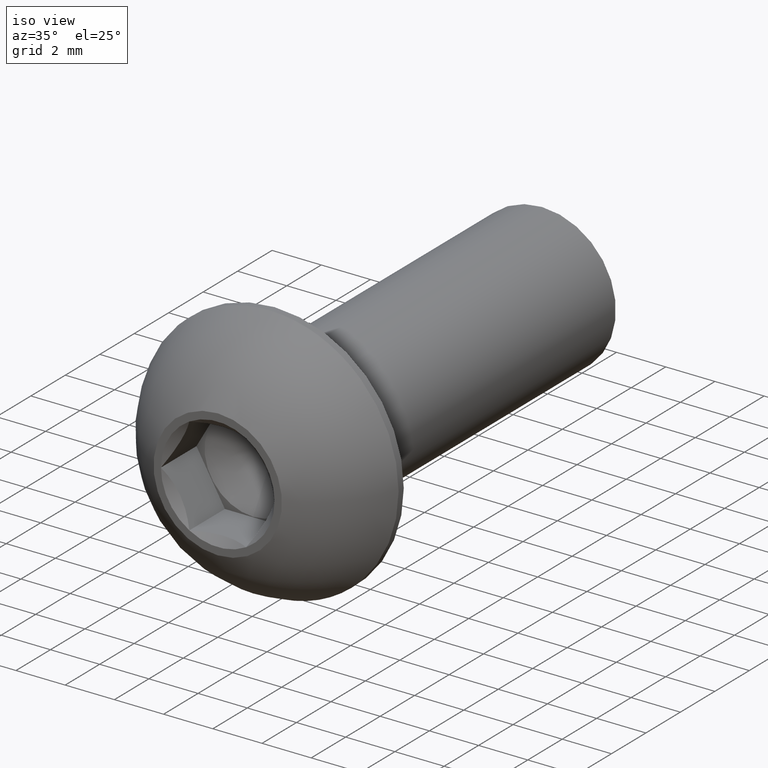
[diagram: clean part render]
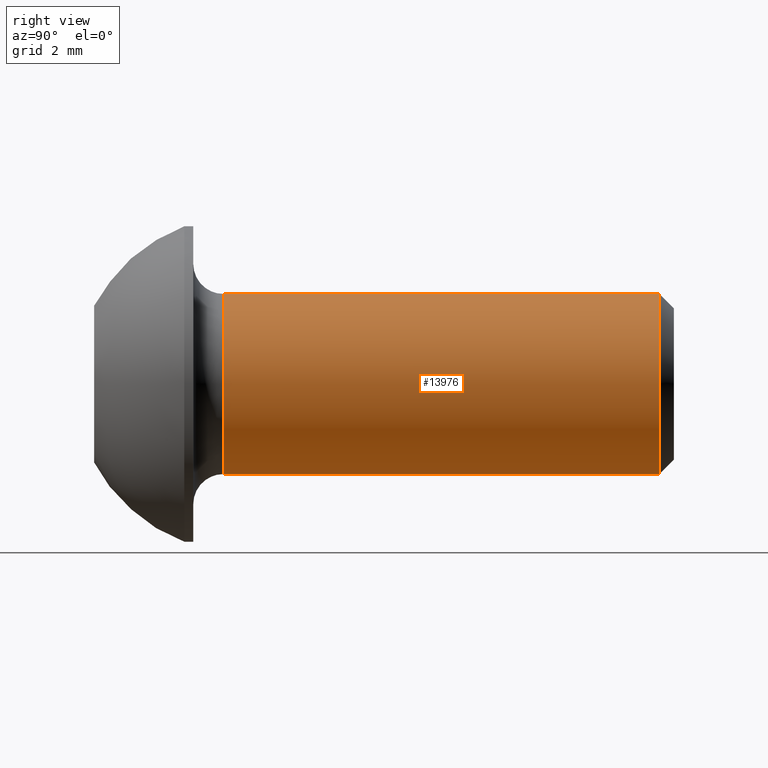
[diagram: tour spotlight — one face highlighted and labeled with its STEP entity id]
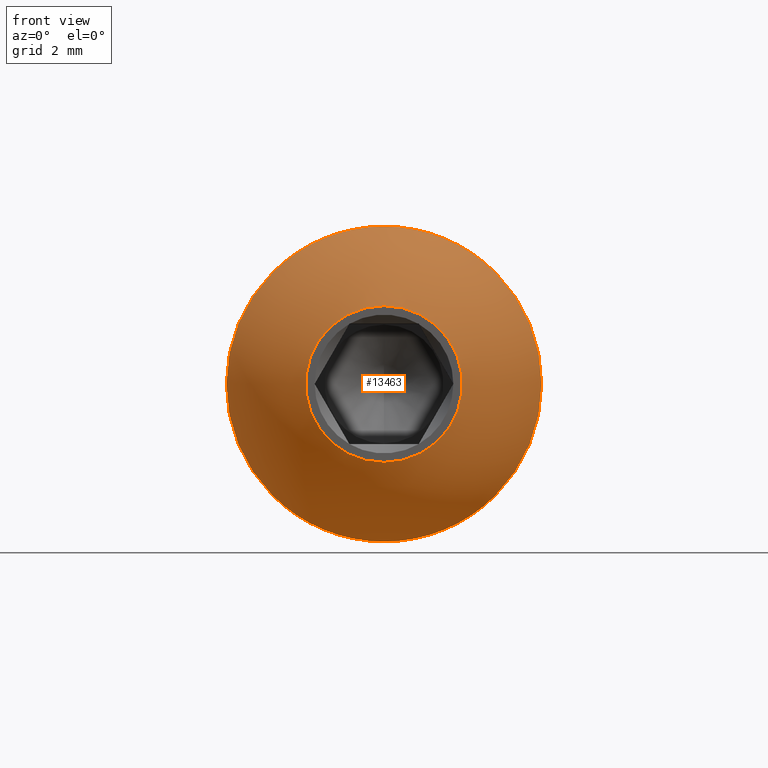
[diagram: tour spotlight — one face highlighted and labeled with its STEP entity id]
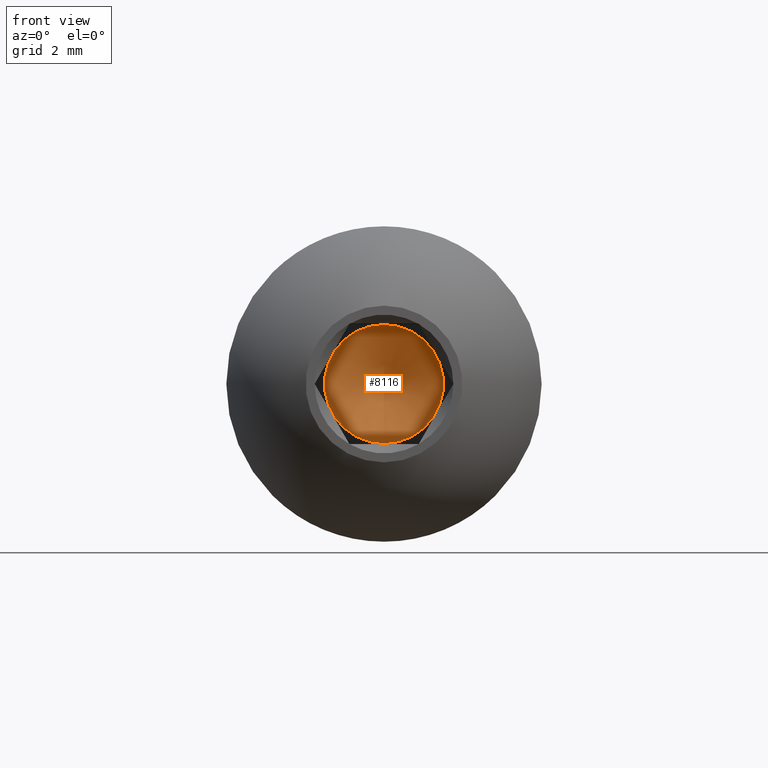
[diagram: tour spotlight — one face highlighted and labeled with its STEP entity id]
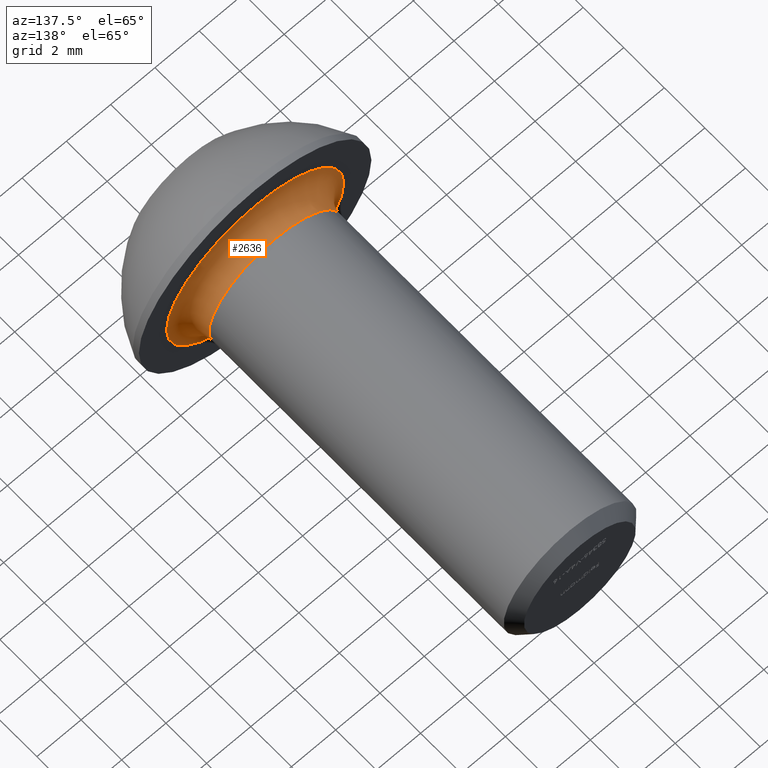
[diagram: tour spotlight — one face highlighted and labeled with its STEP entity id]
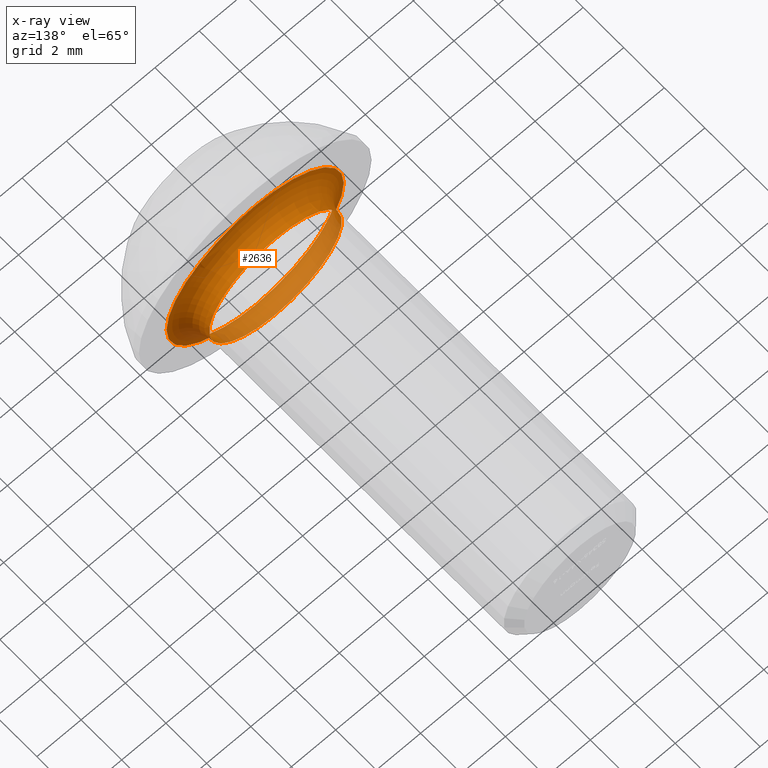
[diagram: x-ray of the same camera — body ghosted, this tour face saturated]
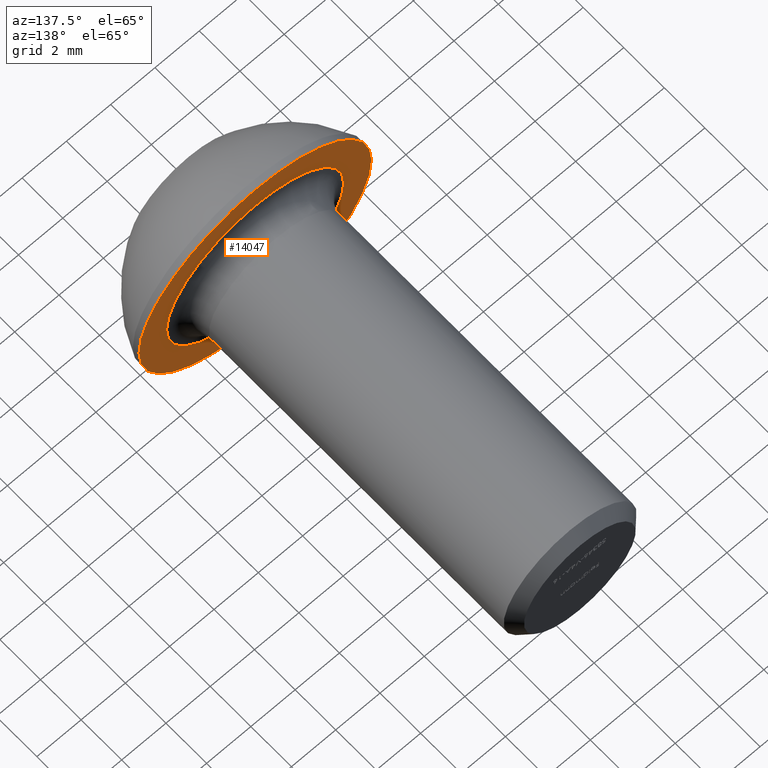
[diagram: tour spotlight — one face highlighted and labeled with its STEP entity id]
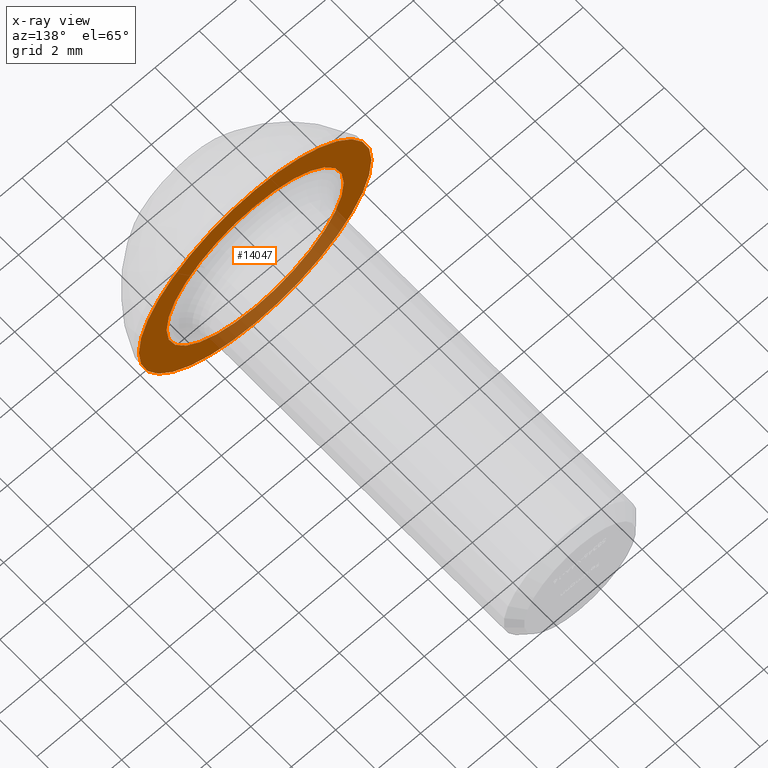
[diagram: x-ray of the same camera — body ghosted, this tour face saturated]
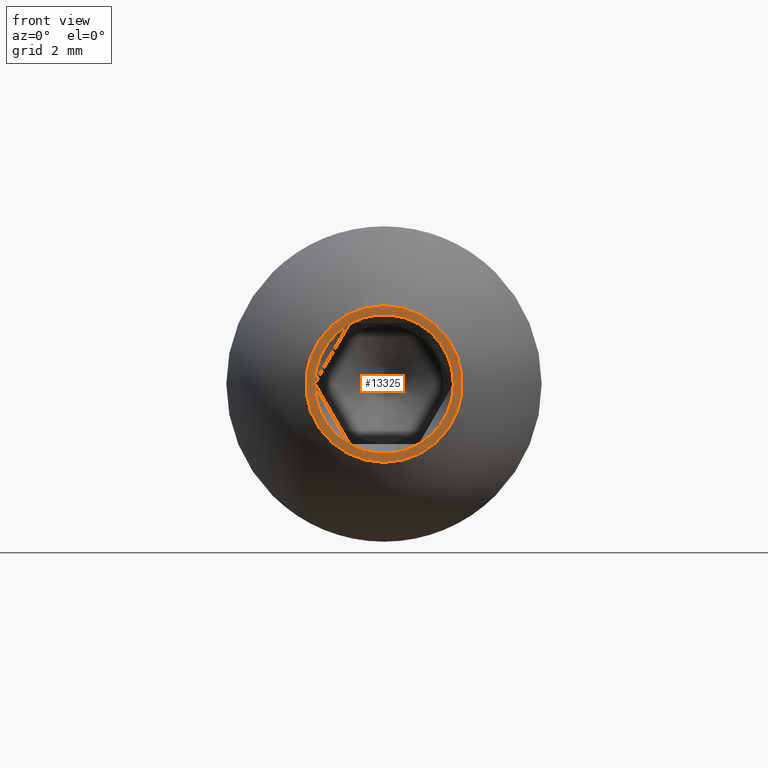
[diagram: tour spotlight — one face highlighted and labeled with its STEP entity id]
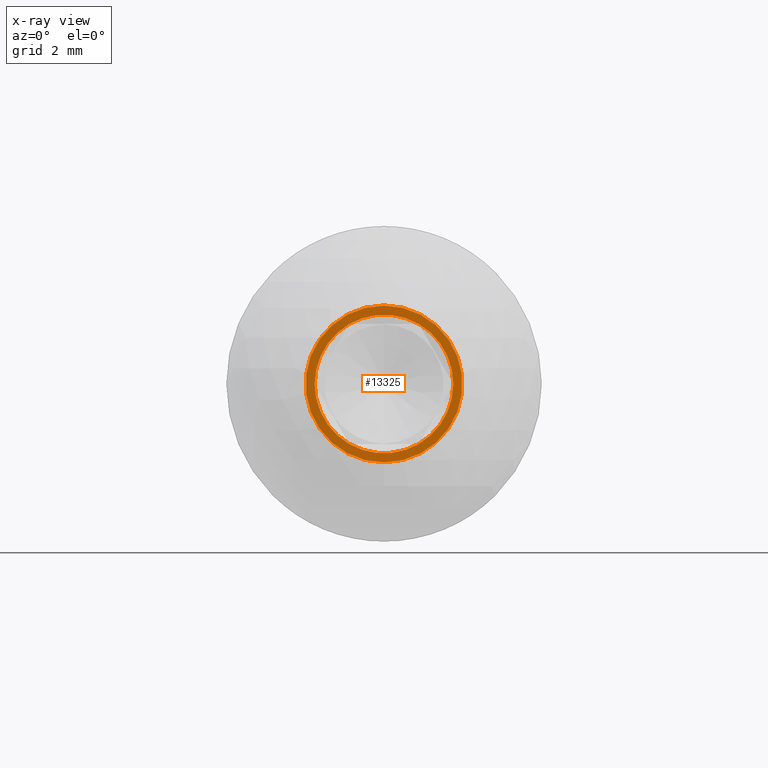
[diagram: x-ray of the same camera — body ghosted, this tour face saturated]
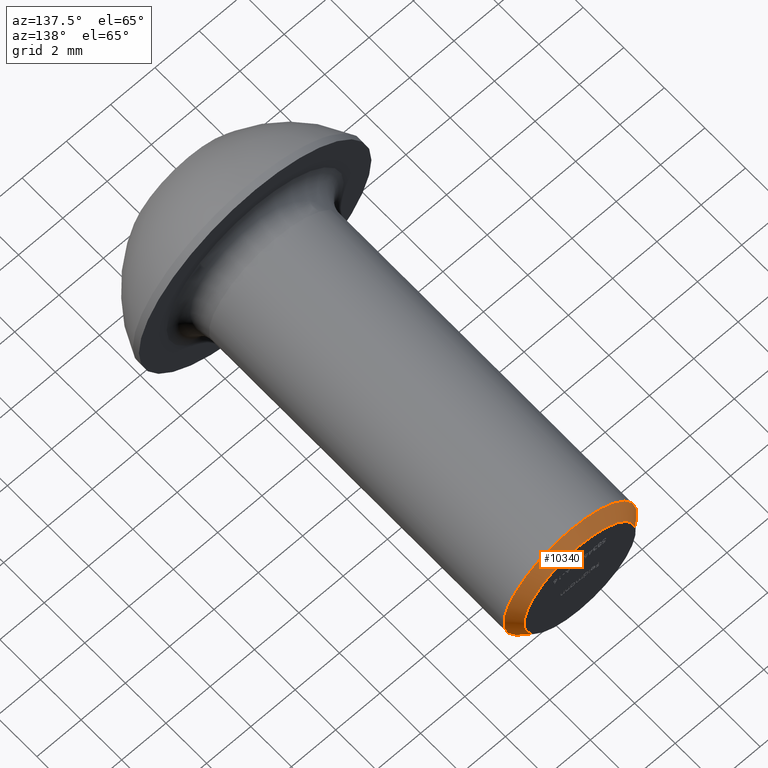
[diagram: tour spotlight — one face highlighted and labeled with its STEP entity id]
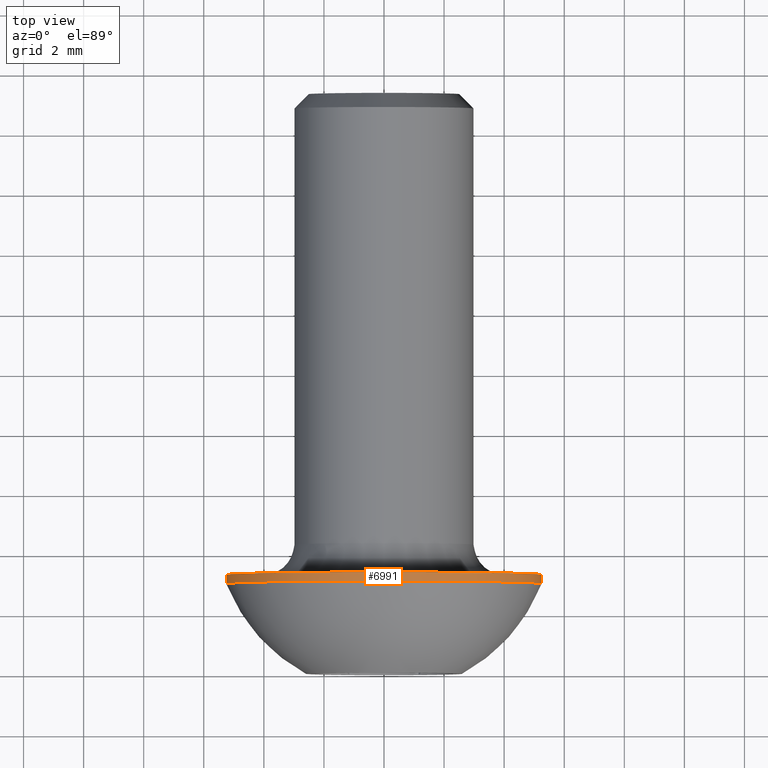
[diagram: tour spotlight — one face highlighted and labeled with its STEP entity id]
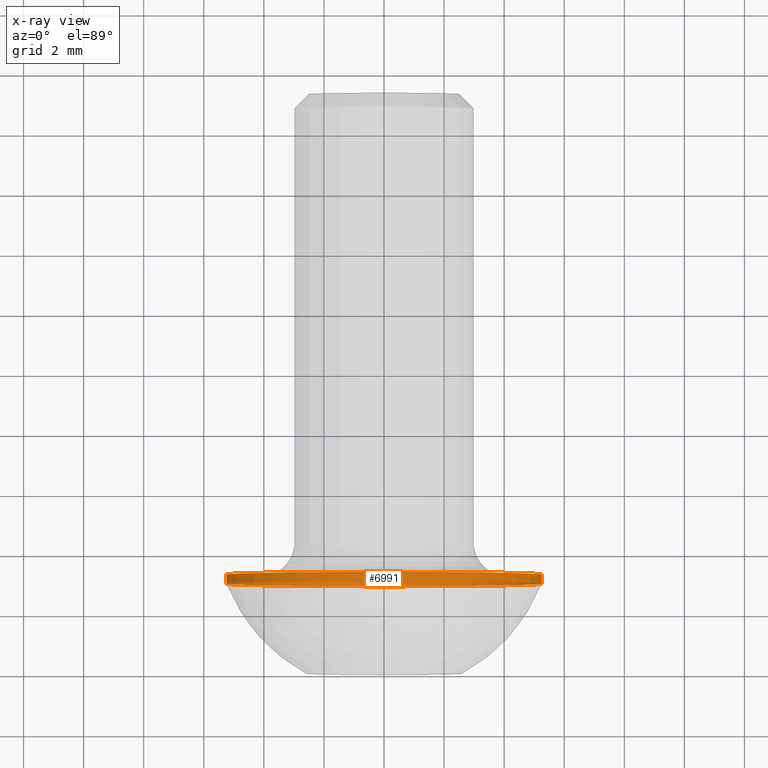
[diagram: x-ray of the same camera — body ghosted, this tour face saturated]
A machine part: a face-by-face anatomy tour. The part has 284 B-rep faces; the first image is the clean iso view, then the 8 largest visible faces are spotlighted one at a time (largest first), each with its STEP entity span.

Face 1 — right view, entity #13976. In plain terms, the highlighted cylindrical surface (bore or boss wall) has radius 3 mm, axis along (-0, -1, -0).
Definition (entity closure, byte-faithful):
#1062 = VERTEX_POINT ( 'NONE', #4914 ) ;
#1251 = CARTESIAN_POINT ( 'NONE',  ( 0.0000000000000000000, 4.299999999999999800, 0.0000000000000000000 ) ) ;
#1510 = EDGE_LOOP ( 'NONE', ( #7083 ) ) ;
#3542 = AXIS2_PLACEMENT_3D ( 'NONE', #8443, #12845, #11848 ) ;
#4266 = CARTESIAN_POINT ( 'NONE',  ( 0.0000000000000000000, 0.0000000000000000000, 0.0000000000000000000 ) ) ;
#4881 = FACE_OUTER_BOUND ( 'NONE', #11014, .T. ) ;
#4914 = CARTESIAN_POINT ( 'NONE',  ( 0.0000000000000000000, 18.82269999999999800, -2.999999999999995600 ) ) ;
#5054 = VERTEX_POINT ( 'NONE', #5830 ) ;
#5402 = CIRCLE ( 'NONE', #6385, 2.999999999999997300 ) ;
#5830 = CARTESIAN_POINT ( 'NONE',  ( 0.0000000000000000000, 4.299999999999999800, -2.999999999999997300 ) ) ;
#6370 = DIRECTION ( 'NONE',  ( 0.0000000000000000000, 0.0000000000000000000, -1.000000000000000000 ) ) ;
#6385 = AXIS2_PLACEMENT_3D ( 'NONE', #1251, #8945, #10043 ) ;
#6498 = ORIENTED_EDGE ( 'NONE', *, *, #13571, .T. ) ;
#7083 = ORIENTED_EDGE ( 'NONE', *, *, #13759, .T. ) ;
#7489 = AXIS2_PLACEMENT_3D ( 'NONE', #4266, #10622, #6370 ) ;
#8443 = CARTESIAN_POINT ( 'NONE',  ( 0.0000000000000000000, 18.82269999999999800, 0.0000000000000000000 ) ) ;
#8945 = DIRECTION ( 'NONE',  ( 0.0000000000000000000, 1.000000000000000000, 0.0000000000000000000 ) ) ;
#10043 = DIRECTION ( 'NONE',  ( 0.0000000000000000000, 0.0000000000000000000, -1.000000000000000000 ) ) ;
#10168 = CIRCLE ( 'NONE', #3542, 2.999999999999995600 ) ;
#10622 = DIRECTION ( 'NONE',  ( -0.0000000000000000000, -1.000000000000000000, -0.0000000000000000000 ) ) ;
#11014 = EDGE_LOOP ( 'NONE', ( #6498 ) ) ;
#11848 = DIRECTION ( 'NONE',  ( 0.0000000000000000000, 0.0000000000000000000, -1.000000000000000000 ) ) ;
#12845 = DIRECTION ( 'NONE',  ( -0.0000000000000000000, -1.000000000000000000, -0.0000000000000000000 ) ) ;
#13571 = EDGE_CURVE ( 'NONE', #1062, #1062, #10168, .T. ) ;
#13629 = CYLINDRICAL_SURFACE ( 'NONE', #7489, 2.999999999999997300 ) ;
#13759 = EDGE_CURVE ( 'NONE', #5054, #5054, #5402, .T. ) ;
#13976 = ADVANCED_FACE ( 'NONE', ( #14147, #4881 ), #13629, .T. ) ;
#14147 = FACE_OUTER_BOUND ( 'NONE', #1510, .T. ) ;

Face 2 — front view, entity #13463. In plain terms, the highlighted spherical surface has radius 5.6036 mm.
Definition (entity closure, byte-faithful):
#898 = SPHERICAL_SURFACE ( 'NONE', #5297, 5.603558824327607500 ) ;
#1649 = DIRECTION ( 'NONE',  ( 0.0000000000000000000, 0.0000000000000000000, 1.000000000000000000 ) ) ;
#1720 = DIRECTION ( 'NONE',  ( 0.0000000000000000000, 0.0000000000000000000, -1.000000000000000000 ) ) ;
#1906 = DIRECTION ( 'NONE',  ( -0.0000000000000000000, -1.000000000000000000, -0.0000000000000000000 ) ) ;
#2635 = CARTESIAN_POINT ( 'NONE',  ( 0.0000000000000000000, 3.000000000000000000, -5.249999999999999100 ) ) ;
#3590 = ORIENTED_EDGE ( 'NONE', *, *, #13072, .T. ) ;
#3717 = VERTEX_POINT ( 'NONE', #2635 ) ;
#3841 = DIRECTION ( 'NONE',  ( 1.000000000000000000, 0.0000000000000000000, 0.0000000000000000000 ) ) ;
#4013 = EDGE_CURVE ( 'NONE', #12084, #12084, #13783, .T. ) ;
#4555 = EDGE_LOOP ( 'NONE', ( #3590 ) ) ;
#5074 = CIRCLE ( 'NONE', #9838, 5.249999999999999100 ) ;
#5297 = AXIS2_PLACEMENT_3D ( 'NONE', #10494, #1649, #3841 ) ;
#6537 = ORIENTED_EDGE ( 'NONE', *, *, #4013, .F. ) ;
#7759 = EDGE_LOOP ( 'NONE', ( #6537 ) ) ;
#9547 = DIRECTION ( 'NONE',  ( -0.0000000000000000000, -1.000000000000000000, -0.0000000000000000000 ) ) ;
#9586 = DIRECTION ( 'NONE',  ( 0.0000000000000000000, 0.0000000000000000000, -1.000000000000000000 ) ) ;
#9838 = AXIS2_PLACEMENT_3D ( 'NONE', #10457, #9547, #1720 ) ;
#10457 = CARTESIAN_POINT ( 'NONE',  ( 0.0000000000000000000, 3.000000000000000000, 0.0000000000000000000 ) ) ;
#10494 = CARTESIAN_POINT ( 'NONE',  ( 0.0000000000000000000, 4.958921003435260200, 0.0000000000000000000 ) ) ;
#11425 = CARTESIAN_POINT ( 'NONE',  ( 0.0000000000000000000, -8.673617379884035500E-016, -2.609401076758501000 ) ) ;
#12084 = VERTEX_POINT ( 'NONE', #11425 ) ;
#12226 = AXIS2_PLACEMENT_3D ( 'NONE', #12941, #1906, #9586 ) ;
#12941 = CARTESIAN_POINT ( 'NONE',  ( 0.0000000000000000000, -8.673617379884035500E-016, 0.0000000000000000000 ) ) ;
#13072 = EDGE_CURVE ( 'NONE', #3717, #3717, #5074, .T. ) ;
#13125 = FACE_OUTER_BOUND ( 'NONE', #7759, .T. ) ;
#13302 = FACE_OUTER_BOUND ( 'NONE', #4555, .T. ) ;
#13463 = ADVANCED_FACE ( 'NONE', ( #13302, #13125 ), #898, .T. ) ;
#13783 = CIRCLE ( 'NONE', #12226, 2.609401076758501000 ) ;

Face 3 — front view, entity #8116. In plain terms, the highlighted conical surface has half-angle 59 deg.
Definition (entity closure, byte-faithful):
#461 = FACE_OUTER_BOUND ( 'NONE', #1400, .T. ) ;
#1400 = EDGE_LOOP ( 'NONE', ( #11714 ) ) ;
#1598 = EDGE_CURVE ( 'NONE', #6084, #6084, #11752, .T. ) ;
#1631 = DIRECTION ( 'NONE',  ( -0.0000000000000000000, -1.000000000000000000, -0.0000000000000000000 ) ) ;
#2209 = CONICAL_SURFACE ( 'NONE', #5358, 1.979999999999999500, 1.029744258676657400 ) ;
#5358 = AXIS2_PLACEMENT_3D ( 'NONE', #11341, #1631, #11444 ) ;
#5773 = AXIS2_PLACEMENT_3D ( 'NONE', #12982, #12940, #6349 ) ;
#6084 = VERTEX_POINT ( 'NONE', #12607 ) ;
#6349 = DIRECTION ( 'NONE',  ( 0.0000000000000000000, 0.0000000000000000000, -1.000000000000000000 ) ) ;
#8116 = ADVANCED_FACE ( 'NONE', ( #461 ), #2209, .F. ) ;
#11341 = CARTESIAN_POINT ( 'NONE',  ( 0.0000000000000000000, 2.062499999999999100, 0.0000000000000000000 ) ) ;
#11444 = DIRECTION ( 'NONE',  ( 0.0000000000000000000, 0.0000000000000000000, -1.000000000000000000 ) ) ;
#11714 = ORIENTED_EDGE ( 'NONE', *, *, #1598, .F. ) ;
#11752 = CIRCLE ( 'NONE', #5773, 1.980000000000000000 ) ;
#12607 = CARTESIAN_POINT ( 'NONE',  ( 0.0000000000000000000, 2.062499999999999600, -1.980000000000000000 ) ) ;
#12940 = DIRECTION ( 'NONE',  ( -0.0000000000000000000, 1.000000000000000000, -0.0000000000000000000 ) ) ;
#12982 = CARTESIAN_POINT ( 'NONE',  ( 0.0000000000000000000, 2.062499999999999600, 0.0000000000000000000 ) ) ;

Face 4 — auxiliary view, entity #2636. An x-ray twin of the same camera follows (body ghosted, this face saturated) — the face is partly hidden behind the body. In plain terms, the highlighted toroidal blend (fillet) surface has major radius 4 mm and minor (blend) radius 1 mm.
Definition (entity closure, byte-faithful):
#522 = ORIENTED_EDGE ( 'NONE', *, *, #9339, .F. ) ;
#1251 = CARTESIAN_POINT ( 'NONE',  ( 0.0000000000000000000, 4.299999999999999800, 0.0000000000000000000 ) ) ;
#1289 = CARTESIAN_POINT ( 'NONE',  ( 0.0000000000000000000, 3.299999999999999800, 0.0000000000000000000 ) ) ;
#2342 = ORIENTED_EDGE ( 'NONE', *, *, #13759, .F. ) ;
#2379 = AXIS2_PLACEMENT_3D ( 'NONE', #1289, #6937, #10176 ) ;
#2636 = ADVANCED_FACE ( 'NONE', ( #2975, #13289 ), #4195, .F. ) ;
#2638 = DIRECTION ( 'NONE',  ( -0.0000000000000000000, -1.000000000000000000, -0.0000000000000000000 ) ) ;
#2975 = FACE_OUTER_BOUND ( 'NONE', #7581, .T. ) ;
#4195 = TOROIDAL_SURFACE ( 'NONE', #13508, 3.999999999999997300, 1.000000000000000000 ) ;
#4722 = CARTESIAN_POINT ( 'NONE',  ( 0.0000000000000000000, 3.299999999999999800, -3.999999999999997300 ) ) ;
#5054 = VERTEX_POINT ( 'NONE', #5830 ) ;
#5239 = CIRCLE ( 'NONE', #2379, 3.999999999999997300 ) ;
#5402 = CIRCLE ( 'NONE', #6385, 2.999999999999997300 ) ;
#5830 = CARTESIAN_POINT ( 'NONE',  ( 0.0000000000000000000, 4.299999999999999800, -2.999999999999997300 ) ) ;
#6385 = AXIS2_PLACEMENT_3D ( 'NONE', #1251, #8945, #10043 ) ;
#6937 = DIRECTION ( 'NONE',  ( -0.0000000000000000000, -1.000000000000000000, -0.0000000000000000000 ) ) ;
#7581 = EDGE_LOOP ( 'NONE', ( #2342 ) ) ;
#8945 = DIRECTION ( 'NONE',  ( 0.0000000000000000000, 1.000000000000000000, 0.0000000000000000000 ) ) ;
#9339 = EDGE_CURVE ( 'NONE', #9534, #9534, #5239, .T. ) ;
#9534 = VERTEX_POINT ( 'NONE', #4722 ) ;
#10043 = DIRECTION ( 'NONE',  ( 0.0000000000000000000, 0.0000000000000000000, -1.000000000000000000 ) ) ;
#10176 = DIRECTION ( 'NONE',  ( 0.0000000000000000000, 0.0000000000000000000, -1.000000000000000000 ) ) ;
#10312 = DIRECTION ( 'NONE',  ( 0.0000000000000000000, 0.0000000000000000000, -1.000000000000000000 ) ) ;
#12462 = EDGE_LOOP ( 'NONE', ( #522 ) ) ;
#12610 = CARTESIAN_POINT ( 'NONE',  ( 0.0000000000000000000, 4.299999999999999800, 0.0000000000000000000 ) ) ;
#13289 = FACE_OUTER_BOUND ( 'NONE', #12462, .T. ) ;
#13508 = AXIS2_PLACEMENT_3D ( 'NONE', #12610, #2638, #10312 ) ;
#13759 = EDGE_CURVE ( 'NONE', #5054, #5054, #5402, .T. ) ;

Face 5 — auxiliary view, entity #14047. An x-ray twin of the same camera follows (body ghosted, this face saturated) — the face is partly hidden behind the body. In plain terms, the highlighted planar face has unit normal (0, -1, -0).
Definition (entity closure, byte-faithful):
#7 = EDGE_LOOP ( 'NONE', ( #2085 ) ) ;
#501 = CARTESIAN_POINT ( 'NONE',  ( 0.0000000000000000000, 3.299999999999999800, -5.249999999999999100 ) ) ;
#886 = CIRCLE ( 'NONE', #10346, 5.249999999999999100 ) ;
#1289 = CARTESIAN_POINT ( 'NONE',  ( 0.0000000000000000000, 3.299999999999999800, 0.0000000000000000000 ) ) ;
#1927 = DIRECTION ( 'NONE',  ( 0.0000000000000000000, -1.000000000000000000, -0.0000000000000000000 ) ) ;
#2085 = ORIENTED_EDGE ( 'NONE', *, *, #9339, .T. ) ;
#2379 = AXIS2_PLACEMENT_3D ( 'NONE', #1289, #6937, #10176 ) ;
#2701 = EDGE_CURVE ( 'NONE', #8469, #8469, #886, .T. ) ;
#4219 = CARTESIAN_POINT ( 'NONE',  ( 2.999999999999999100, 3.299999999999999800, 0.0000000000000000000 ) ) ;
#4722 = CARTESIAN_POINT ( 'NONE',  ( 0.0000000000000000000, 3.299999999999999800, -3.999999999999997300 ) ) ;
#5239 = CIRCLE ( 'NONE', #2379, 3.999999999999997300 ) ;
#5784 = EDGE_LOOP ( 'NONE', ( #12988 ) ) ;
#6937 = DIRECTION ( 'NONE',  ( -0.0000000000000000000, -1.000000000000000000, -0.0000000000000000000 ) ) ;
#7600 = DIRECTION ( 'NONE',  ( -0.0000000000000000000, -1.000000000000000000, -0.0000000000000000000 ) ) ;
#8216 = AXIS2_PLACEMENT_3D ( 'NONE', #4219, #1927, #13006 ) ;
#8469 = VERTEX_POINT ( 'NONE', #501 ) ;
#9339 = EDGE_CURVE ( 'NONE', #9534, #9534, #5239, .T. ) ;
#9534 = VERTEX_POINT ( 'NONE', #4722 ) ;
#10176 = DIRECTION ( 'NONE',  ( 0.0000000000000000000, 0.0000000000000000000, -1.000000000000000000 ) ) ;
#10339 = FACE_OUTER_BOUND ( 'NONE', #5784, .T. ) ;
#10346 = AXIS2_PLACEMENT_3D ( 'NONE', #13088, #7600, #12858 ) ;
#10806 = PLANE ( 'NONE',  #8216 ) ;
#11373 = FACE_BOUND ( 'NONE', #7, .T. ) ;
#12858 = DIRECTION ( 'NONE',  ( 0.0000000000000000000, 0.0000000000000000000, -1.000000000000000000 ) ) ;
#12988 = ORIENTED_EDGE ( 'NONE', *, *, #2701, .F. ) ;
#13006 = DIRECTION ( 'NONE',  ( 0.0000000000000000000, 0.0000000000000000000, -1.000000000000000000 ) ) ;
#13088 = CARTESIAN_POINT ( 'NONE',  ( 0.0000000000000000000, 3.299999999999999800, 0.0000000000000000000 ) ) ;
#14047 = ADVANCED_FACE ( 'NONE', ( #11373, #10339 ), #10806, .F. ) ;

Face 6 — front view, entity #13325. An x-ray twin of the same camera follows (body ghosted, this face saturated) — the face is partly hidden behind the body. In plain terms, the highlighted planar face has unit normal (0, 1, 0).
Definition (entity closure, byte-faithful):
#240 = PLANE ( 'NONE',  #7390 ) ;
#340 = CARTESIAN_POINT ( 'NONE',  ( 2.609401076758502700, -4.336808689942017700E-016, 0.0000000000000000000 ) ) ;
#545 = CIRCLE ( 'NONE', #11169, 2.309401076758502900 ) ;
#663 = ORIENTED_EDGE ( 'NONE', *, *, #664, .F. ) ;
#664 = EDGE_CURVE ( 'NONE', #3145, #10253, #545, .T. ) ;
#861 = CIRCLE ( 'NONE', #4863, 2.309401076758502900 ) ;
#1169 = ORIENTED_EDGE ( 'NONE', *, *, #4013, .T. ) ;
#1345 = EDGE_LOOP ( 'NONE', ( #1169 ) ) ;
#1527 = CARTESIAN_POINT ( 'NONE',  ( 2.309401076758477200, 0.0000000000000000000, -4.329725882211680000E-016 ) ) ;
#1906 = DIRECTION ( 'NONE',  ( -0.0000000000000000000, -1.000000000000000000, -0.0000000000000000000 ) ) ;
#2375 = CIRCLE ( 'NONE', #13259, 2.309401076758502900 ) ;
#2413 = ORIENTED_EDGE ( 'NONE', *, *, #10199, .F. ) ;
#2514 = DIRECTION ( 'NONE',  ( -0.0000000000000000000, -1.000000000000000000, -0.0000000000000000000 ) ) ;
#2661 = CARTESIAN_POINT ( 'NONE',  ( -1.154700538379267900, 0.0000000000000000000, -2.000000000000000900 ) ) ;
#2925 = CARTESIAN_POINT ( 'NONE',  ( 1.154700538379232100, 0.0000000000000000000, 1.999999999999999600 ) ) ;
#3145 = VERTEX_POINT ( 'NONE', #9224 ) ;
#3227 = CARTESIAN_POINT ( 'NONE',  ( 0.0000000000000000000, 0.0000000000000000000, 0.0000000000000000000 ) ) ;
#3404 = EDGE_CURVE ( 'NONE', #10253, #6145, #13452, .T. ) ;
#3708 = DIRECTION ( 'NONE',  ( 0.0000000000000000000, 1.000000000000000000, 0.0000000000000000000 ) ) ;
#3830 = DIRECTION ( 'NONE',  ( 0.0000000000000000000, 0.0000000000000000000, -1.000000000000000000 ) ) ;
#3888 = CIRCLE ( 'NONE', #6280, 2.309401076758502900 ) ;
#3975 = CARTESIAN_POINT ( 'NONE',  ( 0.0000000000000000000, 0.0000000000000000000, 0.0000000000000000000 ) ) ;
#4013 = EDGE_CURVE ( 'NONE', #12084, #12084, #13783, .T. ) ;
#4321 = CARTESIAN_POINT ( 'NONE',  ( -1.154700538379267900, 0.0000000000000000000, 1.999999999999999600 ) ) ;
#4589 = EDGE_CURVE ( 'NONE', #6310, #12603, #861, .T. ) ;
#4863 = AXIS2_PLACEMENT_3D ( 'NONE', #13511, #6929, #6876 ) ;
#5228 = DIRECTION ( 'NONE',  ( 0.0000000000000000000, 0.0000000000000000000, -1.000000000000000000 ) ) ;
#5541 = DIRECTION ( 'NONE',  ( 0.0000000000000000000, 0.0000000000000000000, -1.000000000000000000 ) ) ;
#5616 = ORIENTED_EDGE ( 'NONE', *, *, #4589, .F. ) ;
#5685 = CARTESIAN_POINT ( 'NONE',  ( 1.154700538379223500, 0.0000000000000000000, -2.000000000000016000 ) ) ;
#6107 = AXIS2_PLACEMENT_3D ( 'NONE', #11601, #9700, #5228 ) ;
#6145 = VERTEX_POINT ( 'NONE', #5685 ) ;
#6280 = AXIS2_PLACEMENT_3D ( 'NONE', #13528, #2514, #3830 ) ;
#6310 = VERTEX_POINT ( 'NONE', #2925 ) ;
#6876 = DIRECTION ( 'NONE',  ( 0.0000000000000000000, 0.0000000000000000000, -1.000000000000000000 ) ) ;
#6929 = DIRECTION ( 'NONE',  ( -0.0000000000000000000, -1.000000000000000000, -0.0000000000000000000 ) ) ;
#6948 = DIRECTION ( 'NONE',  ( -0.0000000000000000000, -1.000000000000000000, -0.0000000000000000000 ) ) ;
#6992 = CARTESIAN_POINT ( 'NONE',  ( 0.0000000000000000000, 0.0000000000000000000, 0.0000000000000000000 ) ) ;
#7390 = AXIS2_PLACEMENT_3D ( 'NONE', #340, #3708, #8046 ) ;
#8046 = DIRECTION ( 'NONE',  ( 0.0000000000000000000, -0.0000000000000000000, 1.000000000000000000 ) ) ;
#8212 = EDGE_CURVE ( 'NONE', #6145, #8503, #2375, .T. ) ;
#8231 = EDGE_LOOP ( 'NONE', ( #8763, #12041, #663, #8380, #5616, #2413 ) ) ;
#8380 = ORIENTED_EDGE ( 'NONE', *, *, #13886, .F. ) ;
#8503 = VERTEX_POINT ( 'NONE', #1527 ) ;
#8763 = ORIENTED_EDGE ( 'NONE', *, *, #8212, .F. ) ;
#9224 = CARTESIAN_POINT ( 'NONE',  ( -2.309401076758476300, 0.0000000000000000000, 1.326675390987758900E-016 ) ) ;
#9586 = DIRECTION ( 'NONE',  ( 0.0000000000000000000, 0.0000000000000000000, -1.000000000000000000 ) ) ;
#9700 = DIRECTION ( 'NONE',  ( -0.0000000000000000000, -1.000000000000000000, -0.0000000000000000000 ) ) ;
#9878 = DIRECTION ( 'NONE',  ( -0.0000000000000000000, -1.000000000000000000, -0.0000000000000000000 ) ) ;
#10199 = EDGE_CURVE ( 'NONE', #8503, #6310, #3888, .T. ) ;
#10253 = VERTEX_POINT ( 'NONE', #2661 ) ;
#10575 = DIRECTION ( 'NONE',  ( 0.0000000000000000000, 0.0000000000000000000, -1.000000000000000000 ) ) ;
#10879 = FACE_BOUND ( 'NONE', #8231, .T. ) ;
#11169 = AXIS2_PLACEMENT_3D ( 'NONE', #6992, #6948, #11397 ) ;
#11397 = DIRECTION ( 'NONE',  ( 0.0000000000000000000, 0.0000000000000000000, -1.000000000000000000 ) ) ;
#11425 = CARTESIAN_POINT ( 'NONE',  ( 0.0000000000000000000, -8.673617379884035500E-016, -2.609401076758501000 ) ) ;
#11601 = CARTESIAN_POINT ( 'NONE',  ( 0.0000000000000000000, 0.0000000000000000000, 0.0000000000000000000 ) ) ;
#12024 = AXIS2_PLACEMENT_3D ( 'NONE', #3227, #9878, #5541 ) ;
#12041 = ORIENTED_EDGE ( 'NONE', *, *, #3404, .F. ) ;
#12084 = VERTEX_POINT ( 'NONE', #11425 ) ;
#12226 = AXIS2_PLACEMENT_3D ( 'NONE', #12941, #1906, #9586 ) ;
#12280 = FACE_OUTER_BOUND ( 'NONE', #1345, .T. ) ;
#12603 = VERTEX_POINT ( 'NONE', #4321 ) ;
#12941 = CARTESIAN_POINT ( 'NONE',  ( 0.0000000000000000000, -8.673617379884035500E-016, 0.0000000000000000000 ) ) ;
#13259 = AXIS2_PLACEMENT_3D ( 'NONE', #3975, #13811, #10575 ) ;
#13325 = ADVANCED_FACE ( 'NONE', ( #10879, #12280 ), #240, .F. ) ;
#13452 = CIRCLE ( 'NONE', #12024, 2.309401076758502900 ) ;
#13511 = CARTESIAN_POINT ( 'NONE',  ( 0.0000000000000000000, 0.0000000000000000000, 0.0000000000000000000 ) ) ;
#13528 = CARTESIAN_POINT ( 'NONE',  ( 0.0000000000000000000, 0.0000000000000000000, 0.0000000000000000000 ) ) ;
#13783 = CIRCLE ( 'NONE', #12226, 2.609401076758501000 ) ;
#13810 = CIRCLE ( 'NONE', #6107, 2.309401076758502900 ) ;
#13811 = DIRECTION ( 'NONE',  ( -0.0000000000000000000, -1.000000000000000000, -0.0000000000000000000 ) ) ;
#13886 = EDGE_CURVE ( 'NONE', #12603, #3145, #13810, .T. ) ;

Face 7 — auxiliary view, entity #10340. In plain terms, the highlighted conical surface has half-angle 45 deg.
Definition (entity closure, byte-faithful):
#483 = EDGE_CURVE ( 'NONE', #1772, #1772, #7286, .T. ) ;
#939 = FACE_BOUND ( 'NONE', #2409, .T. ) ;
#1062 = VERTEX_POINT ( 'NONE', #4914 ) ;
#1429 = CARTESIAN_POINT ( 'NONE',  ( 0.0000000000000000000, 19.29999999999999700, -2.522700000000002600 ) ) ;
#1636 = DIRECTION ( 'NONE',  ( -0.0000000000000000000, -1.000000000000000000, -0.0000000000000000000 ) ) ;
#1772 = VERTEX_POINT ( 'NONE', #1429 ) ;
#2143 = FACE_OUTER_BOUND ( 'NONE', #10906, .T. ) ;
#2409 = EDGE_LOOP ( 'NONE', ( #8703 ) ) ;
#3542 = AXIS2_PLACEMENT_3D ( 'NONE', #8443, #12845, #11848 ) ;
#4812 = DIRECTION ( 'NONE',  ( -0.0000000000000000000, -1.000000000000000000, -0.0000000000000000000 ) ) ;
#4914 = CARTESIAN_POINT ( 'NONE',  ( 0.0000000000000000000, 18.82269999999999800, -2.999999999999995600 ) ) ;
#5139 = DIRECTION ( 'NONE',  ( 0.0000000000000000000, 0.0000000000000000000, -1.000000000000000000 ) ) ;
#6236 = CARTESIAN_POINT ( 'NONE',  ( 0.0000000000000000000, 19.29999999999999700, 0.0000000000000000000 ) ) ;
#7286 = CIRCLE ( 'NONE', #10433, 2.522700000000002600 ) ;
#8443 = CARTESIAN_POINT ( 'NONE',  ( 0.0000000000000000000, 18.82269999999999800, 0.0000000000000000000 ) ) ;
#8703 = ORIENTED_EDGE ( 'NONE', *, *, #483, .T. ) ;
#10168 = CIRCLE ( 'NONE', #3542, 2.999999999999995600 ) ;
#10340 = ADVANCED_FACE ( 'NONE', ( #2143, #939 ), #12843, .T. ) ;
#10433 = AXIS2_PLACEMENT_3D ( 'NONE', #11367, #4812, #13548 ) ;
#10906 = EDGE_LOOP ( 'NONE', ( #13576 ) ) ;
#11367 = CARTESIAN_POINT ( 'NONE',  ( 0.0000000000000000000, 19.29999999999999700, 0.0000000000000000000 ) ) ;
#11848 = DIRECTION ( 'NONE',  ( 0.0000000000000000000, 0.0000000000000000000, -1.000000000000000000 ) ) ;
#12156 = AXIS2_PLACEMENT_3D ( 'NONE', #6236, #1636, #5139 ) ;
#12843 = CONICAL_SURFACE ( 'NONE', #12156, 2.522700000000002600, 0.7853981633974410600 ) ;
#12845 = DIRECTION ( 'NONE',  ( -0.0000000000000000000, -1.000000000000000000, -0.0000000000000000000 ) ) ;
#13548 = DIRECTION ( 'NONE',  ( 0.0000000000000000000, 0.0000000000000000000, -1.000000000000000000 ) ) ;
#13571 = EDGE_CURVE ( 'NONE', #1062, #1062, #10168, .T. ) ;
#13576 = ORIENTED_EDGE ( 'NONE', *, *, #13571, .F. ) ;

Face 8 — top view, entity #6991. An x-ray twin of the same camera follows (body ghosted, this face saturated) — the face is partly hidden behind the body. In plain terms, the highlighted cylindrical surface (bore or boss wall) has radius 5.25 mm, axis along (-0, -1, -0).
Definition (entity closure, byte-faithful):
#501 = CARTESIAN_POINT ( 'NONE',  ( 0.0000000000000000000, 3.299999999999999800, -5.249999999999999100 ) ) ;
#886 = CIRCLE ( 'NONE', #10346, 5.249999999999999100 ) ;
#1720 = DIRECTION ( 'NONE',  ( 0.0000000000000000000, 0.0000000000000000000, -1.000000000000000000 ) ) ;
#2043 = FACE_OUTER_BOUND ( 'NONE', #10473, .T. ) ;
#2359 = ORIENTED_EDGE ( 'NONE', *, *, #13072, .F. ) ;
#2635 = CARTESIAN_POINT ( 'NONE',  ( 0.0000000000000000000, 3.000000000000000000, -5.249999999999999100 ) ) ;
#2701 = EDGE_CURVE ( 'NONE', #8469, #8469, #886, .T. ) ;
#3717 = VERTEX_POINT ( 'NONE', #2635 ) ;
#4223 = DIRECTION ( 'NONE',  ( -0.0000000000000000000, -1.000000000000000000, -0.0000000000000000000 ) ) ;
#5074 = CIRCLE ( 'NONE', #9838, 5.249999999999999100 ) ;
#5356 = FACE_OUTER_BOUND ( 'NONE', #9939, .T. ) ;
#6991 = ADVANCED_FACE ( 'NONE', ( #2043, #5356 ), #8406, .T. ) ;
#7600 = DIRECTION ( 'NONE',  ( -0.0000000000000000000, -1.000000000000000000, -0.0000000000000000000 ) ) ;
#7713 = AXIS2_PLACEMENT_3D ( 'NONE', #14181, #4223, #12015 ) ;
#8406 = CYLINDRICAL_SURFACE ( 'NONE', #7713, 5.249999999999999100 ) ;
#8469 = VERTEX_POINT ( 'NONE', #501 ) ;
#8596 = ORIENTED_EDGE ( 'NONE', *, *, #2701, .T. ) ;
#9547 = DIRECTION ( 'NONE',  ( -0.0000000000000000000, -1.000000000000000000, -0.0000000000000000000 ) ) ;
#9838 = AXIS2_PLACEMENT_3D ( 'NONE', #10457, #9547, #1720 ) ;
#9939 = EDGE_LOOP ( 'NONE', ( #8596 ) ) ;
#10346 = AXIS2_PLACEMENT_3D ( 'NONE', #13088, #7600, #12858 ) ;
#10457 = CARTESIAN_POINT ( 'NONE',  ( 0.0000000000000000000, 3.000000000000000000, 0.0000000000000000000 ) ) ;
#10473 = EDGE_LOOP ( 'NONE', ( #2359 ) ) ;
#12015 = DIRECTION ( 'NONE',  ( 0.0000000000000000000, 0.0000000000000000000, -1.000000000000000000 ) ) ;
#12858 = DIRECTION ( 'NONE',  ( 0.0000000000000000000, 0.0000000000000000000, -1.000000000000000000 ) ) ;
#13072 = EDGE_CURVE ( 'NONE', #3717, #3717, #5074, .T. ) ;
#13088 = CARTESIAN_POINT ( 'NONE',  ( 0.0000000000000000000, 3.299999999999999800, 0.0000000000000000000 ) ) ;
#14181 = CARTESIAN_POINT ( 'NONE',  ( 0.0000000000000000000, 0.0000000000000000000, 0.0000000000000000000 ) ) ;